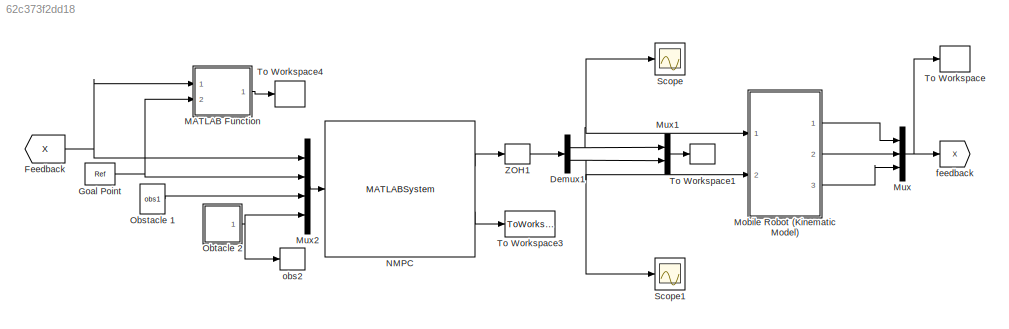
MODEL slx_62c373f2dd18
KIND model
CONFIG AbsTol = auto
CONFIG EnableMultiTasking = off
CONFIG FixedStep = Ts
CONFIG MaxStep = auto
CONFIG MinStep = auto
CONFIG RelTol = 1e-3
CONFIG SampleTimeConstraint = Unconstrained
CONFIG Solver = FixedStepAuto
CONFIG SolverName = FixedStepAuto
CONFIG StartTime = 0.0
CONFIG StopTime = sim_time
BLOCK [Demux] Demux1
  DisplayOption = bar
  Outputs = 2
  Ports = [1, 2]
BLOCK [From] Feedback
  GotoTag = X
BLOCK [Constant] Goal Point
  SampleTime = Ts
  Value = Ref
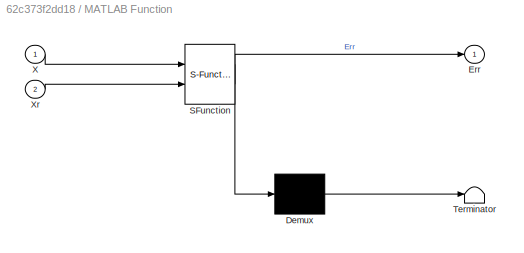
BLOCK [SubSystem] MATLAB Function
  ErrorFcn = Stateflow.Translate.translate
  PermitHierarchicalResolution = ExplicitOnly
  Ports = [2, 1]
  RequestExecContextInheritance = off
  SFBlockType = MATLAB Function
  TreatAsAtomicUnit = on
BLOCK [Demux] MATLAB Function/ Demux 
  Outputs = 1
  Ports = [1, 1]
BLOCK [S-Function] MATLAB Function/ SFunction 
  EnableBusSupport = on
  FunctionName = sf_sfun
  PortCounts = [2 2]
  Ports = [2, 2]
  SFcnIsStateOwnerBlock = off
  SFunctionDeploymentMode = off
  Tag = Stateflow S-Function single_mpc_casadi_euler 2
BLOCK [Terminator] MATLAB Function/ Terminator 
BLOCK [Outport] MATLAB Function/Err
  IconDisplay = Port number
BLOCK [Inport] MATLAB Function/X
  IconDisplay = Port number
BLOCK [Inport] MATLAB Function/Xr
  IconDisplay = Port number
  Port = 2
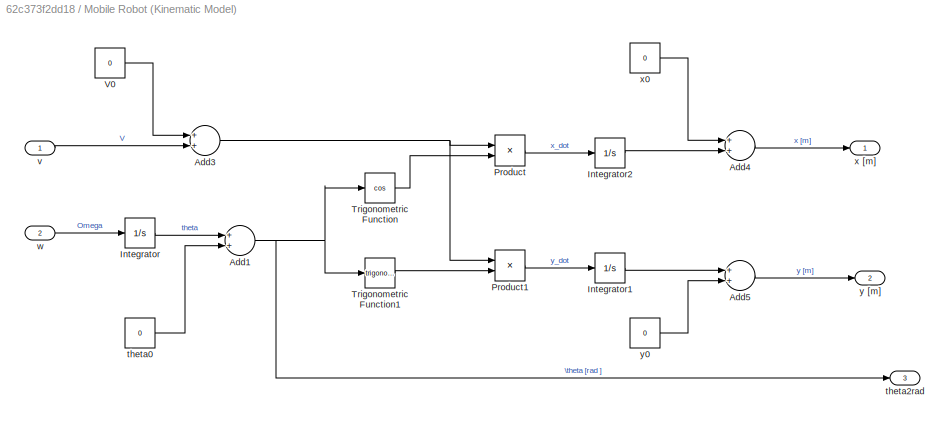
BLOCK [SubSystem] Mobile Robot (Kinematic Model)
  Ports = [2, 3]
  RequestExecContextInheritance = off
BLOCK [Sum] Mobile Robot (Kinematic Model)/Add1
  InputSameDT = off
  OutDataTypeStr = Inherit: Inherit via internal rule
  Ports = [2, 1]
  SaturateOnIntegerOverflow = off
BLOCK [Sum] Mobile Robot (Kinematic Model)/Add3
  InputSameDT = off
  OutDataTypeStr = Inherit: Inherit via internal rule
  Ports = [2, 1]
  SaturateOnIntegerOverflow = off
BLOCK [Sum] Mobile Robot (Kinematic Model)/Add4
  InputSameDT = off
  OutDataTypeStr = Inherit: Inherit via internal rule
  Ports = [2, 1]
  SaturateOnIntegerOverflow = off
BLOCK [Sum] Mobile Robot (Kinematic Model)/Add5
  InputSameDT = off
  OutDataTypeStr = Inherit: Inherit via internal rule
  Ports = [2, 1]
  SaturateOnIntegerOverflow = off
BLOCK [Integrator] Mobile Robot (Kinematic Model)/Integrator
  InitialCondition = th0
  Ports = [1, 1]
BLOCK [Integrator] Mobile Robot (Kinematic Model)/Integrator1
  InitialCondition = y0
  Ports = [1, 1]
BLOCK [Integrator] Mobile Robot (Kinematic Model)/Integrator2
  InitialCondition = x0
  Ports = [1, 1]
BLOCK [Product] Mobile Robot (Kinematic Model)/Product
  InputSameDT = off
  OutDataTypeStr = Inherit: Inherit via internal rule
  Ports = [2, 1]
  RndMeth = Floor
  SaturateOnIntegerOverflow = off
BLOCK [Product] Mobile Robot (Kinematic Model)/Product1
  InputSameDT = off
  OutDataTypeStr = Inherit: Inherit via internal rule
  Ports = [2, 1]
  RndMeth = Floor
  SaturateOnIntegerOverflow = off
BLOCK [Trigonometry] Mobile Robot (Kinematic Model)/Trigonometric Function
  Operator = cos
  Ports = [1, 1]
BLOCK [Trigonometry] Mobile Robot (Kinematic Model)/Trigonometric Function1
  Ports = [1, 1]
BLOCK [Constant] Mobile Robot (Kinematic Model)/V0 
  Value = 0
BLOCK [Constant] Mobile Robot (Kinematic Model)/theta0
  Value = 0
BLOCK [Outport] Mobile Robot (Kinematic Model)/theta2rad
  IconDisplay = Port number
  Port = 3
BLOCK [Inport] Mobile Robot (Kinematic Model)/v
  IconDisplay = Port number
BLOCK [Inport] Mobile Robot (Kinematic Model)/w
  IconDisplay = Port number
  Port = 2
BLOCK [Outport] Mobile Robot (Kinematic Model)/x [m]
  IconDisplay = Port number
BLOCK [Constant] Mobile Robot (Kinematic Model)/x0
  Value = 0
BLOCK [Outport] Mobile Robot (Kinematic Model)/y [m]
  IconDisplay = Port number
  Port = 2
BLOCK [Constant] Mobile Robot (Kinematic Model)/y0
  Value = 0
BLOCK [Mux] Mux
  DisplayOption = bar
  Inputs = 3
  Ports = [3, 1]
BLOCK [Mux] Mux1
  DisplayOption = bar
  Inputs = 2
  Ports = [2, 1]
BLOCK [Mux] Mux2
  DisplayOption = bar
  Ports = [4, 1]
BLOCK [MATLABSystem] NMPC
  MaskDisplay = disp('single_robot_obs');\nport_label('input',1,'x');\nport_label('output',1,'u');\nport_label('output',2,'comp_time');
  MaskType = single_robot_obs
  Ports = [1, 2]
  SimulateUsing = Interpreted execution
  System = single_robot_obs
BLOCK [Constant] Obstacle 1
  SampleTime = Ts
  Value = obs1
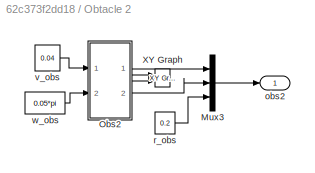
BLOCK [SubSystem] Obtacle 2
  Ports = [0, 1]
  RequestExecContextInheritance = off
BLOCK [Mux] Obtacle 2/Mux3
  DisplayOption = bar
  Inputs = 3
  Ports = [3, 1]
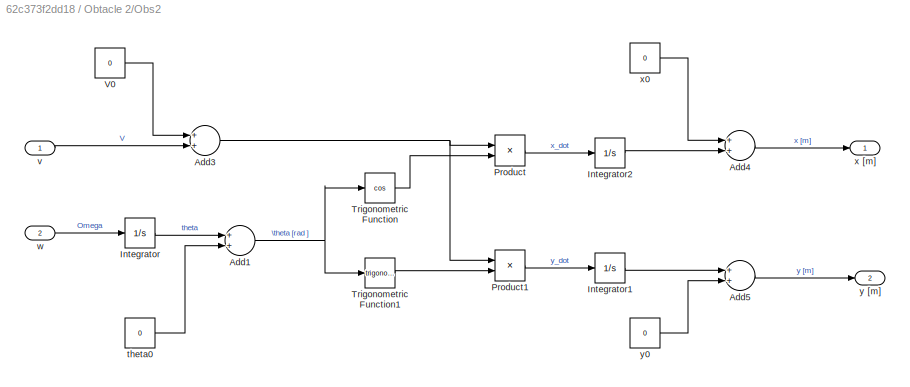
BLOCK [SubSystem] Obtacle 2/Obs2
  Ports = [2, 2]
  RequestExecContextInheritance = off
BLOCK [Sum] Obtacle 2/Obs2/Add1
  InputSameDT = off
  OutDataTypeStr = Inherit: Inherit via internal rule
  Ports = [2, 1]
  SaturateOnIntegerOverflow = off
BLOCK [Sum] Obtacle 2/Obs2/Add3
  InputSameDT = off
  OutDataTypeStr = Inherit: Inherit via internal rule
  Ports = [2, 1]
  SaturateOnIntegerOverflow = off
BLOCK [Sum] Obtacle 2/Obs2/Add4
  InputSameDT = off
  OutDataTypeStr = Inherit: Inherit via internal rule
  Ports = [2, 1]
  SaturateOnIntegerOverflow = off
BLOCK [Sum] Obtacle 2/Obs2/Add5
  InputSameDT = off
  OutDataTypeStr = Inherit: Inherit via internal rule
  Ports = [2, 1]
  SaturateOnIntegerOverflow = off
BLOCK [Integrator] Obtacle 2/Obs2/Integrator
  InitialCondition = -pi/4
  Ports = [1, 1]
BLOCK [Integrator] Obtacle 2/Obs2/Integrator1
  InitialCondition = y_obs2
  Ports = [1, 1]
BLOCK [Integrator] Obtacle 2/Obs2/Integrator2
  InitialCondition = x_obs2
  Ports = [1, 1]
BLOCK [Product] Obtacle 2/Obs2/Product
  InputSameDT = off
  OutDataTypeStr = Inherit: Inherit via internal rule
  Ports = [2, 1]
  RndMeth = Floor
  SaturateOnIntegerOverflow = off
BLOCK [Product] Obtacle 2/Obs2/Product1
  InputSameDT = off
  OutDataTypeStr = Inherit: Inherit via internal rule
  Ports = [2, 1]
  RndMeth = Floor
  SaturateOnIntegerOverflow = off
BLOCK [Trigonometry] Obtacle 2/Obs2/Trigonometric Function
  Operator = cos
  Ports = [1, 1]
BLOCK [Trigonometry] Obtacle 2/Obs2/Trigonometric Function1
  Ports = [1, 1]
BLOCK [Constant] Obtacle 2/Obs2/V0 
  Value = 0
BLOCK [Constant] Obtacle 2/Obs2/theta0
  Value = 0
BLOCK [Inport] Obtacle 2/Obs2/v
  IconDisplay = Port number
BLOCK [Inport] Obtacle 2/Obs2/w
  IconDisplay = Port number
  Port = 2
BLOCK [Outport] Obtacle 2/Obs2/x [m]
  IconDisplay = Port number
BLOCK [Constant] Obtacle 2/Obs2/x0
  Value = 0
BLOCK [Outport] Obtacle 2/Obs2/y [m]
  IconDisplay = Port number
  Port = 2
BLOCK [Constant] Obtacle 2/Obs2/y0
  Value = 0
BLOCK [Reference] Obtacle 2/XY Graph  REF=simulink/Sinks/XY Graph
  Ports = [2]
  SourceBlock = simulink/Sinks/XY Graph
  SourceProductBaseCode = SL
  SourceProductName = Simulink
  SourceType = XY scope.
BLOCK [Outport] Obtacle 2/obs2
  IconDisplay = Port number
BLOCK [Constant] Obtacle 2/r_obs
  SampleTime = Ts
  Value = 0.2
BLOCK [Constant] Obtacle 2/v_obs
  SampleTime = Ts
  Value = 0.04
BLOCK [Constant] Obtacle 2/w_obs
  SampleTime = Ts
  Value = 0.05*pi
BLOCK [Scope] Scope
  Floating = off
  NumInputPorts = 1
  Ports = [1]
  ScopeSpecificationString = Simulink.scopes.TimeScopeBlockCfg('CurrentConfiguration', extmgr.ConfigurationSet(extmgr.Configuration('Core','General UI',true),extmgr.Configuration('Core','Source UI',true),extmgr.Configuration('Sources','WiredSimulink',true),extmgr.Configuration('Visuals','Time Domain',true,'SerializedDisplays',{struct('MinYLimReal','-0.005','MaxYLimReal','0.045','YLabelReal','','MinYLimMag','0.00000','MaxYLimM...<+1345ch>
BLOCK [Scope] Scope1
  Floating = off
  NumInputPorts = 1
  Ports = [1]
  ScopeSpecificationString = Simulink.scopes.TimeScopeBlockCfg('CurrentConfiguration', extmgr.ConfigurationSet(extmgr.Configuration('Core','General UI',true),extmgr.Configuration('Core','Source UI',true),extmgr.Configuration('Sources','WiredSimulink',true,'DataLoggingVariableName','ScopeData1'),extmgr.Configuration('Visuals','Time Domain',true,'SerializedDisplays',{struct('MinYLimReal','-0.49087','MaxYLimReal','0.49087','YLab...<+1398ch>
BLOCK [ToWorkspace] To Workspace
  FixptAsFi = on
  MaxDataPoints = inf
  Ports = [1]
  SampleTime = Ts
  Save2DSignal = 3-D array (concatenate along third dimension)
  SaveFormat = Structure With Time
  VariableName = X
BLOCK [ToWorkspace] To Workspace1
  FixptAsFi = on
  MaxDataPoints = inf
  Ports = [1]
  SampleTime = Ts
  Save2DSignal = 3-D array (concatenate along third dimension)
  SaveFormat = Structure With Time
  VariableName = V
BLOCK [ToWorkspace] To Workspace3
  FixptAsFi = on
  MaxDataPoints = inf
  Ports = [1]
  SampleTime = Ts
  Save2DSignal = 2-D array (concatenate along first dimension)
  SaveFormat = Structure
  VariableName = Comp_time
BLOCK [ToWorkspace] To Workspace4
  FixptAsFi = on
  MaxDataPoints = inf
  Ports = [1]
  SampleTime = Ts
  Save2DSignal = 2-D array (concatenate along first dimension)
  VariableName = err
BLOCK [ZeroOrderHold] ZOH1
  SampleTime = Ts
BLOCK [Goto] feedback
  GotoTag = X
BLOCK [ToWorkspace] obs2
  FixptAsFi = on
  MaxDataPoints = inf
  Ports = [1]
  SampleTime = Ts
  Save2DSignal = 2-D array (concatenate along first dimension)
  SaveFormat = Structure
  VariableName = obsb
NET Demux1:1 -> Mobile Robot (Kinematic Model):1, Mux1:1, Scope:1
NET Demux1:2 -> Mobile Robot (Kinematic Model):2, Mux1:2, Scope1:1
NET Feedback:1 -> MATLAB Function:1, Mux2:1
NET Goal Point:1 -> MATLAB Function:2, Mux2:2
LINE MATLAB Function:1 -> To Workspace4:1
NET Mobile Robot (Kinematic Model)/Add1:1 -> Mobile Robot (Kinematic Model)/Trigonometric Function1:1, Mobile Robot (Kinematic Model)/Trigonometric Function:1, Mobile Robot (Kinematic Model)/theta2rad:1
NET Mobile Robot (Kinematic Model)/Add3:1 -> Mobile Robot (Kinematic Model)/Product1:1, Mobile Robot (Kinematic Model)/Product:1
LINE Mobile Robot (Kinematic Model)/Add4:1 -> Mobile Robot (Kinematic Model)/x [m]:1
LINE Mobile Robot (Kinematic Model)/Add5:1 -> Mobile Robot (Kinematic Model)/y [m]:1
LINE Mobile Robot (Kinematic Model)/Integrator1:1 -> Mobile Robot (Kinematic Model)/Add5:1
LINE Mobile Robot (Kinematic Model)/Integrator2:1 -> Mobile Robot (Kinematic Model)/Add4:2
LINE Mobile Robot (Kinematic Model)/Integrator:1 -> Mobile Robot (Kinematic Model)/Add1:1
LINE Mobile Robot (Kinematic Model)/Product1:1 -> Mobile Robot (Kinematic Model)/Integrator1:1
LINE Mobile Robot (Kinematic Model)/Product:1 -> Mobile Robot (Kinematic Model)/Integrator2:1
LINE Mobile Robot (Kinematic Model)/Trigonometric Function1:1 -> Mobile Robot (Kinematic Model)/Product1:2
LINE Mobile Robot (Kinematic Model)/Trigonometric Function:1 -> Mobile Robot (Kinematic Model)/Product:2
LINE Mobile Robot (Kinematic Model)/V0 :1 -> Mobile Robot (Kinematic Model)/Add3:1
LINE Mobile Robot (Kinematic Model)/theta0:1 -> Mobile Robot (Kinematic Model)/Add1:2
LINE Mobile Robot (Kinematic Model)/v:1 -> Mobile Robot (Kinematic Model)/Add3:2
LINE Mobile Robot (Kinematic Model)/w:1 -> Mobile Robot (Kinematic Model)/Integrator:1
LINE Mobile Robot (Kinematic Model)/x0:1 -> Mobile Robot (Kinematic Model)/Add4:1
LINE Mobile Robot (Kinematic Model)/y0:1 -> Mobile Robot (Kinematic Model)/Add5:2
LINE Mobile Robot (Kinematic Model):1 -> Mux:1
LINE Mobile Robot (Kinematic Model):2 -> Mux:2
LINE Mobile Robot (Kinematic Model):3 -> Mux:3
LINE Mux1:1 -> To Workspace1:1
LINE Mux2:1 -> NMPC:1
NET Mux:1 -> To Workspace:1, feedback:1
LINE NMPC:1 -> ZOH1:1
LINE NMPC:2 -> To Workspace3:1
LINE Obstacle 1:1 -> Mux2:3
LINE Obtacle 2/Mux3:1 -> Obtacle 2/obs2:1
NET Obtacle 2/Obs2/Add1:1 -> Obtacle 2/Obs2/Trigonometric Function1:1, Obtacle 2/Obs2/Trigonometric Function:1
NET Obtacle 2/Obs2/Add3:1 -> Obtacle 2/Obs2/Product1:1, Obtacle 2/Obs2/Product:1
LINE Obtacle 2/Obs2/Add4:1 -> Obtacle 2/Obs2/x [m]:1
LINE Obtacle 2/Obs2/Add5:1 -> Obtacle 2/Obs2/y [m]:1
LINE Obtacle 2/Obs2/Integrator1:1 -> Obtacle 2/Obs2/Add5:1
LINE Obtacle 2/Obs2/Integrator2:1 -> Obtacle 2/Obs2/Add4:2
LINE Obtacle 2/Obs2/Integrator:1 -> Obtacle 2/Obs2/Add1:1
LINE Obtacle 2/Obs2/Product1:1 -> Obtacle 2/Obs2/Integrator1:1
LINE Obtacle 2/Obs2/Product:1 -> Obtacle 2/Obs2/Integrator2:1
LINE Obtacle 2/Obs2/Trigonometric Function1:1 -> Obtacle 2/Obs2/Product1:2
LINE Obtacle 2/Obs2/Trigonometric Function:1 -> Obtacle 2/Obs2/Product:2
LINE Obtacle 2/Obs2/V0 :1 -> Obtacle 2/Obs2/Add3:1
LINE Obtacle 2/Obs2/theta0:1 -> Obtacle 2/Obs2/Add1:2
LINE Obtacle 2/Obs2/v:1 -> Obtacle 2/Obs2/Add3:2
LINE Obtacle 2/Obs2/w:1 -> Obtacle 2/Obs2/Integrator:1
LINE Obtacle 2/Obs2/x0:1 -> Obtacle 2/Obs2/Add4:1
LINE Obtacle 2/Obs2/y0:1 -> Obtacle 2/Obs2/Add5:2
NET Obtacle 2/Obs2:1 -> Obtacle 2/Mux3:1, Obtacle 2/XY Graph:1
NET Obtacle 2/Obs2:2 -> Obtacle 2/Mux3:2, Obtacle 2/XY Graph:2
LINE Obtacle 2/r_obs:1 -> Obtacle 2/Mux3:3
LINE Obtacle 2/v_obs:1 -> Obtacle 2/Obs2:1
LINE Obtacle 2/w_obs:1 -> Obtacle 2/Obs2:2
NET Obtacle 2:1 -> Mux2:4, obs2:1
LINE ZOH1:1 -> Demux1:1
note: NET lines group one-source signal fan-out (src -> all destinations, sorted); 1:1 wires keep LINE
CHART MATLAB Function states=1 transitions=1
  STATE_LABEL 'eML_blk_kernel()'
  STATE_LABEL 'SCRIPT:\nfunction Err = fcn(X,Xr)\nEx = Xr(1) - X(1);\nEy = Xr(2) - X(2);\nEt = Xr(3) - X(3);\n\nErr = [Ex,Ey,Et];\n\n\n'
